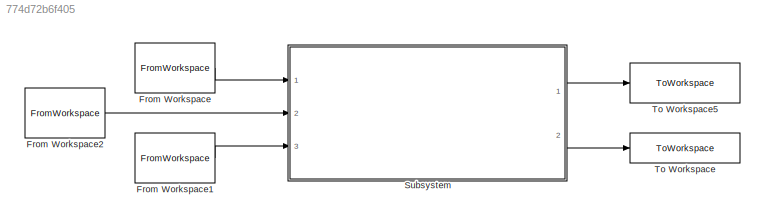
MODEL slx_774d72b6f405
KIND model
CONFIG AbsTol = auto
CONFIG EnableMultiTasking = off
CONFIG FixedStep = auto
CONFIG MaxStep = auto
CONFIG MinStep = auto
CONFIG RelTol = 1e-3
CONFIG SampleTimeConstraint = Unconstrained
CONFIG SolverName = VariableStepAuto
CONFIG StartTime = 0.0
CONFIG StopTime = Timesec(end)-1
BLOCK [FromWorkspace] From Workspace
  SampleTime = dt1
  VariableName = v_reference
BLOCK [FromWorkspace] From Workspace1
  SampleTime = dt2
  VariableName = v_actual
BLOCK [FromWorkspace] From Workspace2
  SampleTime = dt1
  VariableName = v_preview
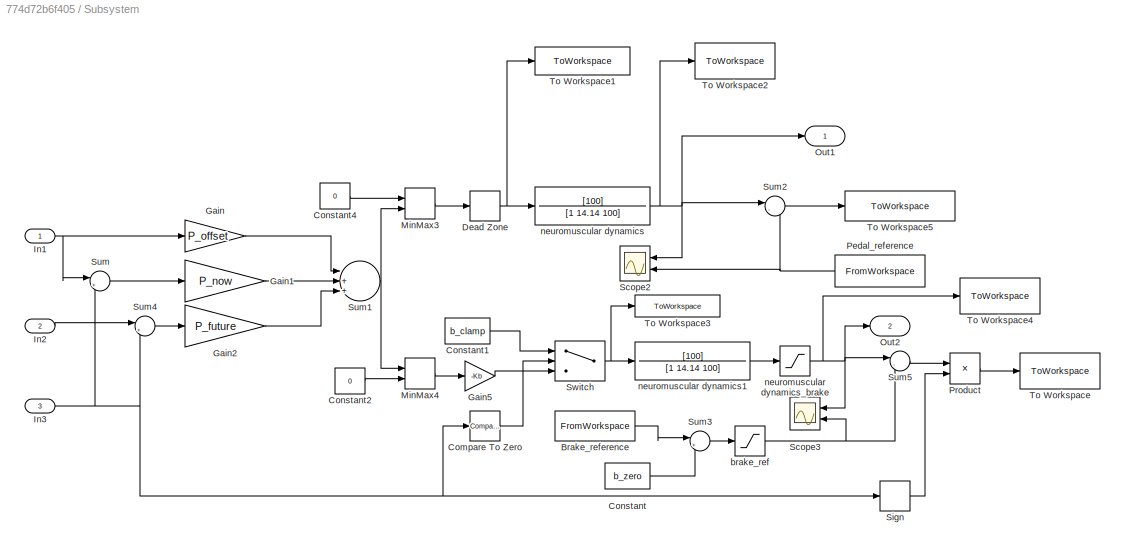
BLOCK [SubSystem] Subsystem
  Ports = [3, 2]
  RequestExecContextInheritance = off
BLOCK [FromWorkspace] Subsystem/Brake_reference
  SampleTime = dt2
  VariableName = b_reference
BLOCK [Reference] Subsystem/Compare To Zero  REF=simulink/Logic and Bit
Operations/Compare
To Zero
  Ports = [1, 1]
  SourceBlock = simulink/Logic and Bit\nOperations/Compare\nTo Zero
  SourceProductBaseCode = SL
  SourceType = Compare To Zero
BLOCK [Constant] Subsystem/Constant
  Value = b_zero
BLOCK [Constant] Subsystem/Constant1
  Value = b_clamp
BLOCK [Constant] Subsystem/Constant2
  Value = 0
BLOCK [Constant] Subsystem/Constant4
  Value = 0
BLOCK [DeadZone] Subsystem/Dead Zone
  LowerValue = 0
  UpperValue = a_threshold
BLOCK [Gain] Subsystem/Gain
  Gain = P_offset
BLOCK [Gain] Subsystem/Gain1
  Gain = P_now
BLOCK [Gain] Subsystem/Gain2
  Gain = P_future
BLOCK [Gain] Subsystem/Gain5
  Gain = -Kb
BLOCK [Inport] Subsystem/In1
BLOCK [Inport] Subsystem/In2
  Port = 2
BLOCK [Inport] Subsystem/In3
  Port = 3
BLOCK [MinMax] Subsystem/MinMax3
  Function = max
  Inputs = 2
  Ports = [2, 1]
BLOCK [MinMax] Subsystem/MinMax4
  Inputs = 2
  Ports = [2, 1]
BLOCK [Outport] Subsystem/Out1
BLOCK [Outport] Subsystem/Out2
  Port = 2
BLOCK [FromWorkspace] Subsystem/Pedal_reference
  NameLocation = top
  SampleTime = dt2
  VariableName = a_reference
BLOCK [Product] Subsystem/Product
  Ports = [2, 1]
BLOCK [Scope] Subsystem/Scope2
  Floating = off
  NameLocation = top
  NumInputPorts = 2
  Ports = [2]
  ScopeSpecificationString = Simulink.scopes.TimeScopeBlockCfg('CurrentConfiguration', extmgr.ConfigurationSet(extmgr.Configuration('Core','General UI',true),extmgr.Configuration('Core','Source UI',true),extmgr.Configuration('Sources','WiredSimulink',true,'DataLoggingVariableName','ScopeData1'),extmgr.Configuration('Visuals','Time Domain',true,'SerializedDisplays',{struct('MinYLimReal','-4.72855','MaxYLimReal','41.66987','YLa...<+1476ch>
BLOCK [Scope] Subsystem/Scope3
  Floating = off
  NameLocation = top
  NumInputPorts = 2
  Ports = [2]
  ScopeSpecificationString = Simulink.scopes.TimeScopeBlockCfg('CurrentConfiguration', extmgr.ConfigurationSet(extmgr.Configuration('Core','General UI',true),extmgr.Configuration('Core','Source UI',true),extmgr.Configuration('Sources','WiredSimulink',true,'DataLoggingVariableName','ScopeData2'),extmgr.Configuration('Visuals','Time Domain',true,'SerializedDisplays',{struct('MinYLimReal','-3.13834','MaxYLimReal','28.24503','YLa...<+1569ch>
BLOCK [Signum] Subsystem/Sign
BLOCK [Sum] Subsystem/Sum
  Inputs = |+-
  Ports = [2, 1]
BLOCK [Sum] Subsystem/Sum1
  Inputs = |+++|
  Ports = [3, 1]
BLOCK [Sum] Subsystem/Sum2
  Inputs = |-+
  Ports = [2, 1]
BLOCK [Sum] Subsystem/Sum3
  Inputs = |+-
  Ports = [2, 1]
BLOCK [Sum] Subsystem/Sum4
  Inputs = |+-
  Ports = [2, 1]
BLOCK [Sum] Subsystem/Sum5
  Inputs = |-+
  Ports = [2, 1]
BLOCK [Switch] Subsystem/Switch
  Criteria = u2 > Threshold
  InputSameDT = off
  SaturateOnIntegerOverflow = off
BLOCK [ToWorkspace] Subsystem/To Workspace
  FixptAsFi = on
  MaxDataPoints = inf
  Ports = [1]
  SampleTime = -1
  SaveFormat = Timeseries
  VariableName = b_error
BLOCK [ToWorkspace] Subsystem/To Workspace1
  FixptAsFi = on
  MaxDataPoints = inf
  Ports = [1]
  SampleTime = -1
  SaveFormat = Timeseries
  VariableName = Pedal_before
BLOCK [ToWorkspace] Subsystem/To Workspace2
  FixptAsFi = on
  MaxDataPoints = inf
  Ports = [1]
  SampleTime = -1
  SaveFormat = Timeseries
  VariableName = Pedal_after
BLOCK [ToWorkspace] Subsystem/To Workspace3
  FixptAsFi = on
  MaxDataPoints = inf
  Ports = [1]
  SampleTime = -1
  SaveFormat = Timeseries
  VariableName = brake_before
BLOCK [ToWorkspace] Subsystem/To Workspace4
  FixptAsFi = on
  MaxDataPoints = inf
  Ports = [1]
  SampleTime = -1
  SaveFormat = Timeseries
  VariableName = brake_after
BLOCK [ToWorkspace] Subsystem/To Workspace5
  FixptAsFi = on
  MaxDataPoints = inf
  Ports = [1]
  SampleTime = -1
  SaveFormat = Timeseries
  VariableName = a_error
BLOCK [Saturate] Subsystem/brake_ref
  LowerLimit = 0
  UpperLimit = 100
BLOCK [TransferFcn] Subsystem/neuromuscular dynamics
  Denominator = [1 14.14 100]
  Numerator = [100]
BLOCK [TransferFcn] Subsystem/neuromuscular dynamics1
  Denominator = [1 14.14 100]
  Numerator = [100]
BLOCK [Saturate] Subsystem/neuromuscular dynamics_brake
  LowerLimit = 0
  UpperLimit = 100
BLOCK [ToWorkspace] To Workspace
  FixptAsFi = on
  MaxDataPoints = inf
  Ports = [1]
  SampleTime = -1
  SaveFormat = Timeseries
  VariableName = b_command
BLOCK [ToWorkspace] To Workspace5
  FixptAsFi = on
  MaxDataPoints = inf
  Ports = [1]
  SampleTime = -1
  SaveFormat = Timeseries
  VariableName = a_command
LINE From Workspace1:1 -> Subsystem:3
LINE From Workspace2:1 -> Subsystem:2
LINE From Workspace:1 -> Subsystem:1
LINE Subsystem/Brake_reference:1 -> Subsystem/Sum3:1
LINE Subsystem/Compare To Zero:1 -> Subsystem/Switch:2
LINE Subsystem/Constant1:1 -> Subsystem/Switch:1
LINE Subsystem/Constant2:1 -> Subsystem/MinMax4:2
LINE Subsystem/Constant4:1 -> Subsystem/MinMax3:1
LINE Subsystem/Constant:1 -> Subsystem/Sum3:2
NET Subsystem/Dead Zone:1 -> Subsystem/To Workspace1:1, Subsystem/neuromuscular dynamics:1
LINE Subsystem/Gain1:1 -> Subsystem/Sum1:2
LINE Subsystem/Gain2:1 -> Subsystem/Sum1:3
LINE Subsystem/Gain5:1 -> Subsystem/Switch:3
LINE Subsystem/Gain:1 -> Subsystem/Sum1:1
NET Subsystem/In1:1 -> Subsystem/Gain:1, Subsystem/Sum:1
LINE Subsystem/In2:1 -> Subsystem/Sum4:1
NET Subsystem/In3:1 -> Subsystem/Compare To Zero:1, Subsystem/Sign:1, Subsystem/Sum4:2, Subsystem/Sum:2
LINE Subsystem/MinMax3:1 -> Subsystem/Dead Zone:1
LINE Subsystem/MinMax4:1 -> Subsystem/Gain5:1
NET Subsystem/Pedal_reference:1 -> Subsystem/Scope2:2, Subsystem/Sum2:2
LINE Subsystem/Product:1 -> Subsystem/To Workspace:1
LINE Subsystem/Sign:1 -> Subsystem/Product:2
NET Subsystem/Sum1:1 -> Subsystem/MinMax3:2, Subsystem/MinMax4:1
LINE Subsystem/Sum2:1 -> Subsystem/To Workspace5:1
LINE Subsystem/Sum3:1 -> Subsystem/brake_ref:1
LINE Subsystem/Sum4:1 -> Subsystem/Gain2:1
LINE Subsystem/Sum5:1 -> Subsystem/Product:1
LINE Subsystem/Sum:1 -> Subsystem/Gain1:1
NET Subsystem/Switch:1 -> Subsystem/To Workspace3:1, Subsystem/neuromuscular dynamics1:1
NET Subsystem/brake_ref:1 -> Subsystem/Scope3:2, Subsystem/Sum5:2
LINE Subsystem/neuromuscular dynamics1:1 -> Subsystem/neuromuscular dynamics_brake:1
NET Subsystem/neuromuscular dynamics:1 -> Subsystem/Out1:1, Subsystem/Scope2:1, Subsystem/Sum2:1, Subsystem/To Workspace2:1
NET Subsystem/neuromuscular dynamics_brake:1 -> Subsystem/Out2:1, Subsystem/Scope3:1, Subsystem/Sum5:1, Subsystem/To Workspace4:1
LINE Subsystem:1 -> To Workspace5:1
LINE Subsystem:2 -> To Workspace:1
note: NET lines group one-source signal fan-out (src -> all destinations, sorted); 1:1 wires keep LINE
